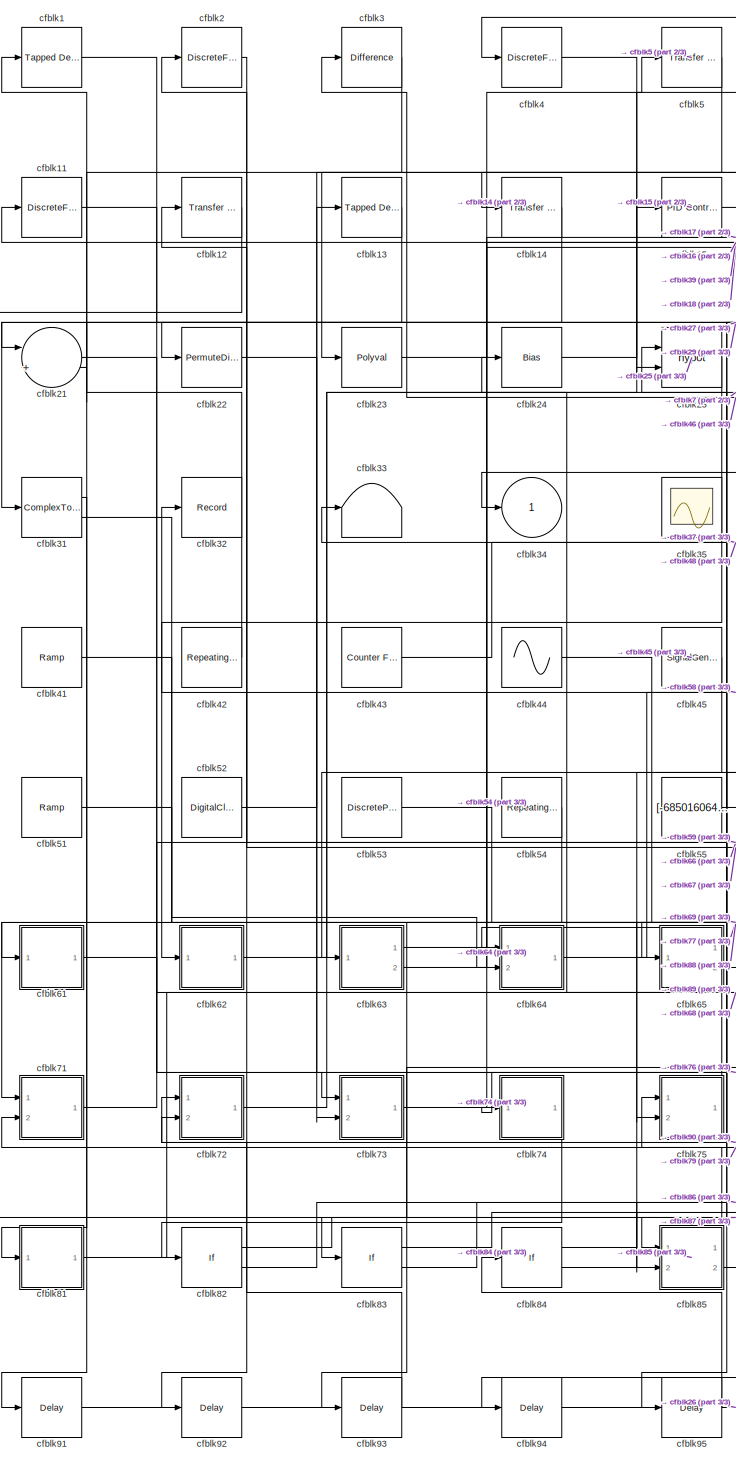
[diagram: root canvas - part 1/3, left side, full height]
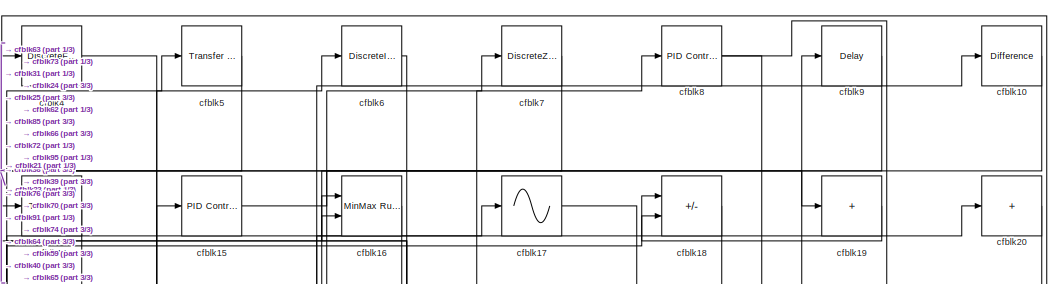
[diagram: root canvas - part 2/3, top center region]
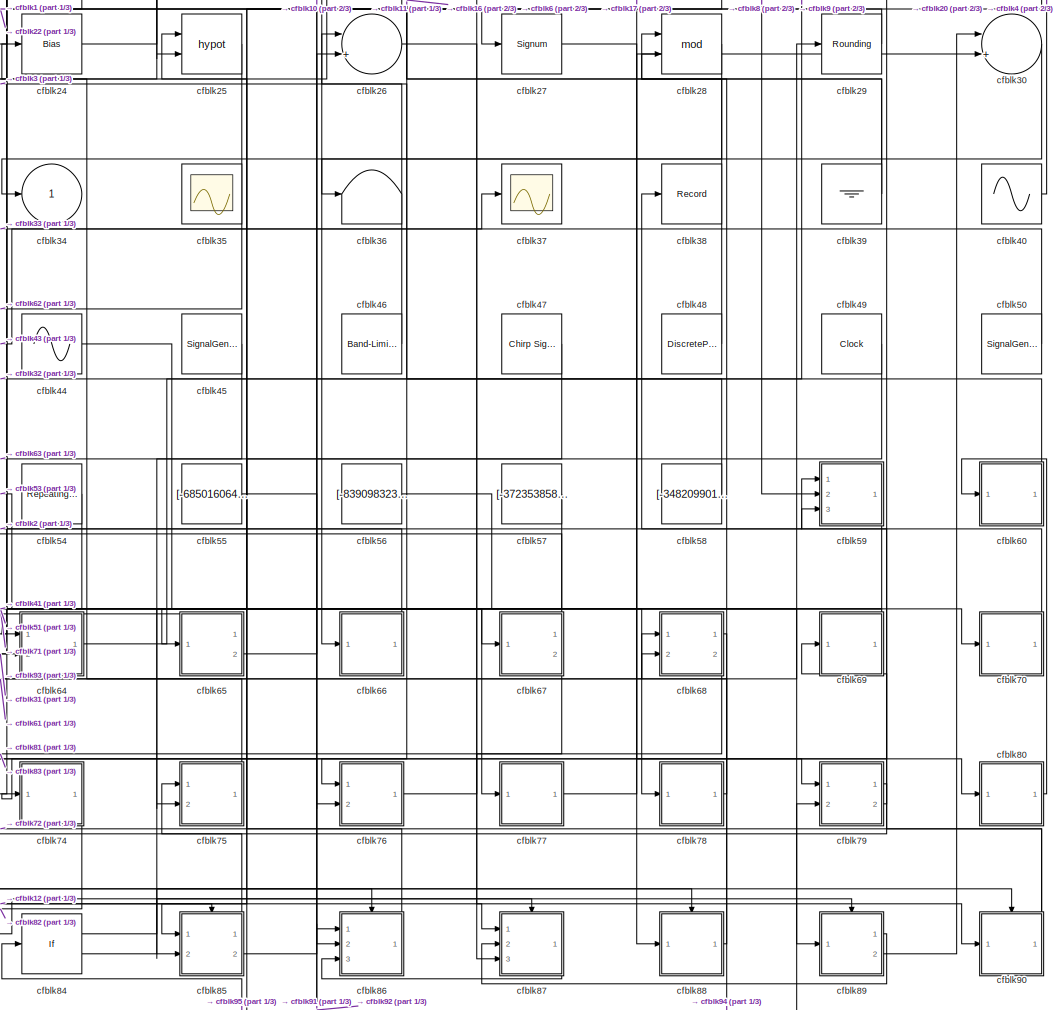
[diagram: root canvas - part 3/3, central region]
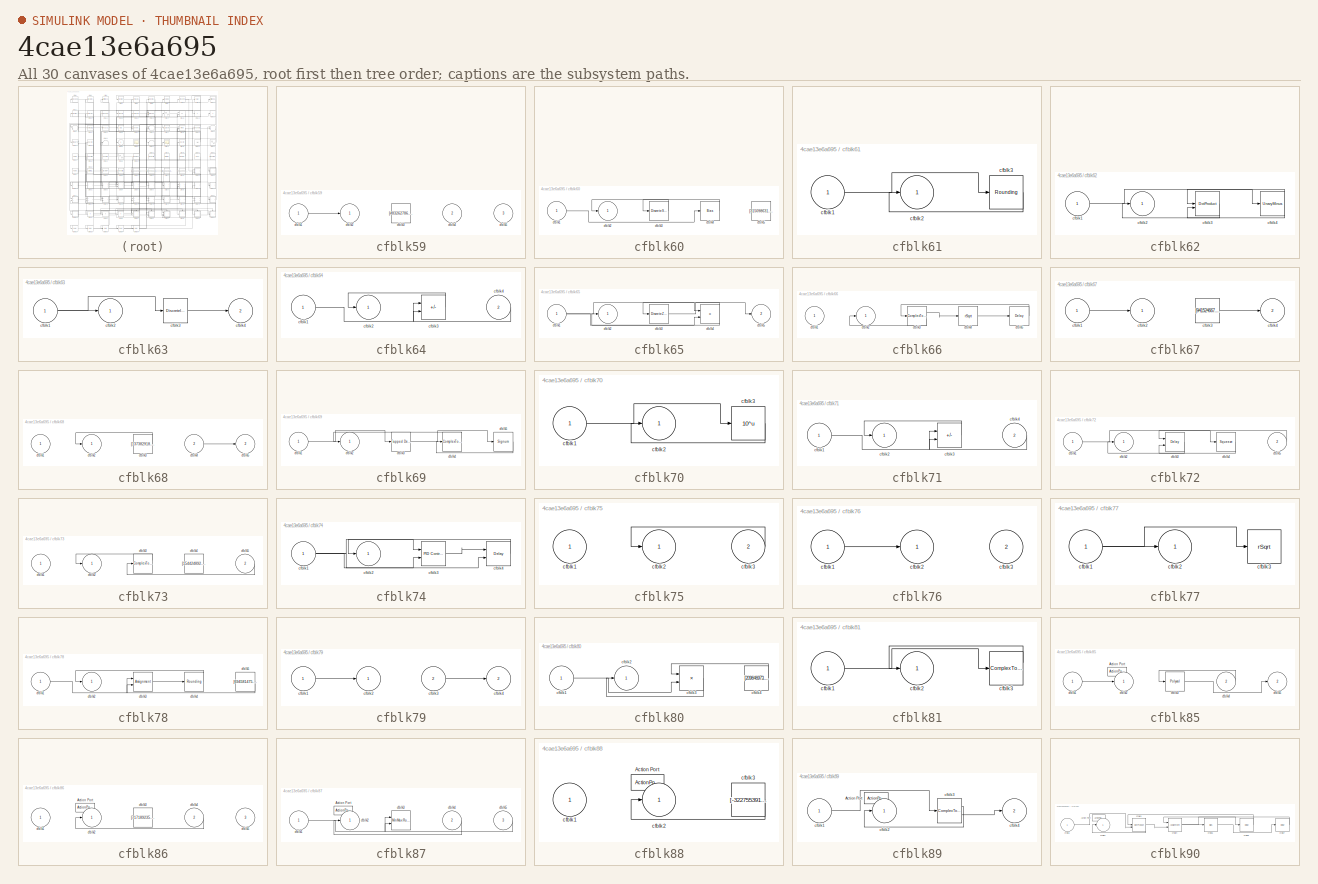
[diagram: thumbnail index - all 30 canvases of the model, root first then tree order]
MODEL slx_4cae13e6a695
KIND model
CONFIG AbsTol = auto
CONFIG EnableMultiTasking = off
CONFIG FixedStep = auto
CONFIG MaxStep = auto
CONFIG MinStep = auto
CONFIG RelTol = 1e-3
CONFIG SampleTimeConstraint = Unconstrained
CONFIG SolverName = VariableStepAuto
CONFIG StartTime = 0.0
CONFIG StopTime = 10.0
BLOCK [Reference] cfblk1  REF=simulink/Discrete/Tapped Delay
  Ports = [1, 1]
  SourceBlock = simulink/Discrete/Tapped Delay
  SourceProductBaseCode = SL
  SourceType = Tapped Delay Line
BLOCK [Reference] cfblk10  REF=simulink/Discrete/Difference
  Ports = [1, 1]
  SourceBlock = simulink/Discrete/Difference
  SourceProductBaseCode = SL
  SourceType = Difference
BLOCK [DiscreteFilter] cfblk11
  InputPortMap = u0
  Ports = [1, 1]
  SampleTime = 1
BLOCK [Reference] cfblk12  REF=simulink/Discrete/Transfer Fcn
Real Zero
  Ports = [1, 1]
  SourceBlock = simulink/Discrete/Transfer Fcn\nReal Zero
  SourceProductBaseCode = SL
  SourceType = Transfer Fcn Real Zero
BLOCK [Reference] cfblk13  REF=simulink/Discrete/Tapped Delay
  Ports = [1, 1]
  SourceBlock = simulink/Discrete/Tapped Delay
  SourceProductBaseCode = SL
  SourceType = Tapped Delay Line
BLOCK [Reference] cfblk14  REF=simulink/Discrete/Transfer Fcn
Real Zero
  Ports = [1, 1]
  SourceBlock = simulink/Discrete/Transfer Fcn\nReal Zero
  SourceProductBaseCode = SL
  SourceType = Transfer Fcn Real Zero
BLOCK [Reference] cfblk15  REF=slpidlib/PID Controller
  Ports = [1, 1]
  SourceBlock = slpidlib/PID Controller
  SourceProductBaseCode = SL
  SourceType = PID 1dof
BLOCK [Reference] cfblk16  REF=simulink/Math
Operations/MinMax
Running
Resettable
  Ports = [2, 1]
  SourceBlock = simulink/Math\nOperations/MinMax\nRunning\nResettable
  SourceProductBaseCode = SL
  SourceType = MinMax Running Resettable
BLOCK [Sin] cfblk17
  Ports = [1, 1]
  SampleTime = 0
  TimeSource = Use external signal
BLOCK [Sum] cfblk18
  IconShape = rectangular
  Inputs = +-
  Ports = [2, 1]
BLOCK [Sum] cfblk19
  IconShape = rectangular
  Inputs = +
  Ports = [1, 1]
BLOCK [DiscreteFilter] cfblk2
  InputPortMap = u0
  Ports = [1, 1]
  SampleTime = 1
BLOCK [Sum] cfblk20
  IconShape = rectangular
  Inputs = +
  Ports = [1, 1]
BLOCK [Sum] cfblk21
  Inputs = |++
  Ports = [2, 1]
BLOCK [PermuteDimensions] cfblk22
BLOCK [Polyval] cfblk23
  Coefs = [ +2.081618890e-019, -1.441693666e-014, +4.719686976e-010, -8.536869453e-006, +1.621573104e-001, -8.087801117e+001 ]
BLOCK [Bias] cfblk24
  Bias = [-380837975.252254]
  SaturateOnIntegerOverflow = off
BLOCK [Math] cfblk25
  Operator = hypot
  Ports = [2, 1]
BLOCK [Sum] cfblk26
  Inputs = |++
  Ports = [2, 1]
BLOCK [Signum] cfblk27
BLOCK [Math] cfblk28
  Operator = mod
  Ports = [2, 1]
BLOCK [Rounding] cfblk29
BLOCK [Reference] cfblk3  REF=simulink/Discrete/Difference
  Ports = [1, 1]
  SourceBlock = simulink/Discrete/Difference
  SourceProductBaseCode = SL
  SourceType = Difference
BLOCK [Sum] cfblk30
  Inputs = |++
  Ports = [2, 1]
BLOCK [ComplexToMagnitudeAngle] cfblk31
  Ports = [1, 2]
BLOCK [Record] cfblk32
  FileSettingsInternal = {"entries":[{"content":{"excelSettings":{"content":{},"type":"Streamout.ExcelSettings"}},"type":"Streamout.FileSettingStorage","uuid":"5b11a5a2-5e68-4f36-8408-98ce854f3ccd"}],"packageUris":["http://schema.mathworks.com/mf0/streamout_blocks/R2020a"],"version":"1.0"}
  Ports = [1]
  SignalsInternal = {"entries":[{"content":{"signals":[{"content":{"blockPath":["sampleModel236/cfblk32"],"channel":[],"dimensions":[1],"domain":"sampleModel236/cfblk32","lineColor":"#a2142f","plots":[1],"port":1,"sid":[""],"signalID":9312,"signalName":"cfblk58"},"type":"RecordBlkView.Signal","uuid":"27712abf-112c-4fe5-b550-73a12bfee51e"}]},"type":"RecordBlkView.InputSignals","uuid":"9fd94b8b-0a36-48a8-a3ac-959d75d04...<+97ch>
  VisualizationBindings = {"sparklinesplugin":{"info":[{"bindingParametersList":[],"subplotID":1}]}}
BLOCK [Terminator] cfblk33
BLOCK [Outport] cfblk34
BLOCK [Scope] cfblk35
  Floating = on
  NumInputPorts = 1
  Ports = []
BLOCK [Terminator] cfblk36
BLOCK [Scope] cfblk37
  Floating = off
  NumInputPorts = 1
  Ports = [1]
BLOCK [Record] cfblk38
  FileSettingsInternal = {"entries":[{"content":{"excelSettings":{"content":{},"type":"Streamout.ExcelSettings"}},"type":"Streamout.FileSettingStorage","uuid":"cb74a84e-db7e-4d7c-954c-5750777a433a"}],"packageUris":["http://schema.mathworks.com/mf0/streamout_blocks/R2020a"],"version":"1.0"}
  Ports = [1]
  SignalsInternal = {"entries":[{"content":{"signals":[{"content":{"blockPath":["sampleModel236/cfblk38"],"channel":[],"dimensions":[1],"domain":"sampleModel236/cfblk38","lineColor":"#4dbeee","plots":[1],"port":1,"sid":[""],"signalID":9308,"signalName":"cfblk70"},"type":"RecordBlkView.Signal","uuid":"318e5d47-999d-40c5-a48e-e77039ca7053"}]},"type":"RecordBlkView.InputSignals","uuid":"7dfd2dd8-a4b3-4c15-80f5-39bd455de...<+97ch>
  VisualizationBindings = {"sparklinesplugin":{"info":[{"bindingParametersList":[],"subplotID":1}]}}
BLOCK [Ground] cfblk39
BLOCK [DiscreteFilter] cfblk4
  InputPortMap = u0
  Ports = [1, 1]
  SampleTime = 1
BLOCK [Sin] cfblk40
  Amplitude = [207543279.558592]
  Bias = [985391916.605616]
  Ports = [0, 1]
  SampleTime = 0
BLOCK [Reference] cfblk41  REF=simulink/Sources/Ramp
  Ports = [0, 1]
  SourceBlock = simulink/Sources/Ramp
  SourceProductBaseCode = SL
  SourceType = Ramp
BLOCK [Reference] cfblk42  REF=simulink/Sources/Repeating
Sequence
Interpolated
  Ports = [0, 1]
  SourceBlock = simulink/Sources/Repeating\nSequence\nInterpolated
  SourceProductBaseCode = SL
  SourceType = Repeating Sequence Interpolated
BLOCK [Reference] cfblk43  REF=simulink/Sources/Counter
Free-Running
  Ports = [0, 1]
  SourceBlock = simulink/Sources/Counter\nFree-Running
  SourceProductBaseCode = SL
  SourceType = Counter Free-Running
BLOCK [Sin] cfblk44
  Amplitude = [-654409943.144665]
  Bias = [-168669685.952818]
  Ports = [0, 1]
  SampleTime = 0
BLOCK [SignalGenerator] cfblk45
  Amplitude = [-252692564.761920]
  Ports = [0, 1]
  WaveForm = square
BLOCK [Reference] cfblk46  REF=simulink/Sources/Band-Limited
White Noise
  Ports = [0, 1]
  SourceBlock = simulink/Sources/Band-Limited\nWhite Noise
  SourceProductBaseCode = SL
  SourceType = Band-Limited White Noise.
BLOCK [Reference] cfblk47  REF=simulink/Sources/Chirp Signal
  Ports = [0, 1]
  SourceBlock = simulink/Sources/Chirp Signal
  SourceProductBaseCode = SL
  SourceType = chirp
BLOCK [DiscretePulseGenerator] cfblk48
  Amplitude = [865458033.694204]
  Period = [94975358.163526]
  PhaseDelay = [8.000000]
  Ports = [0, 1]
  PulseType = Time based
  PulseWidth = 5
BLOCK [Clock] cfblk49
BLOCK [Reference] cfblk5  REF=simulink/Discrete/Transfer Fcn
Lead or Lag
  Ports = [1, 1]
  SourceBlock = simulink/Discrete/Transfer Fcn\nLead or Lag
  SourceProductBaseCode = SL
  SourceType = Lead or Lag Compensator
BLOCK [SignalGenerator] cfblk50
  Amplitude = [244471202.457805]
  Ports = [0, 1]
  Units = rad/sec
  WaveForm = square
BLOCK [Reference] cfblk51  REF=simulink/Sources/Ramp
  Ports = [0, 1]
  SourceBlock = simulink/Sources/Ramp
  SourceProductBaseCode = SL
  SourceType = Ramp
BLOCK [DigitalClock] cfblk52
BLOCK [DiscretePulseGenerator] cfblk53
  Amplitude = [536104014.623219]
  Period = [66164577.755354]
  PhaseDelay = [3.000000]
  Ports = [0, 1]
  PulseType = Time based
  PulseWidth = 5
BLOCK [Reference] cfblk54  REF=simulink/Sources/Repeating
Sequence
Stair
  Ports = [0, 1]
  SourceBlock = simulink/Sources/Repeating\nSequence\nStair
  SourceProductBaseCode = SL
  SourceType = Repeating Sequence Stair
BLOCK [Constant] cfblk55
  SampleTime = 1
  Value = [-685016064.285920]
BLOCK [Constant] cfblk56
  SampleTime = 1
  Value = [-839098323.258842]
BLOCK [Constant] cfblk57
  SampleTime = 1
  Value = [-372353858.279639]
BLOCK [Constant] cfblk58
  SampleTime = 1
  Value = [-348209901.464904]
BLOCK [SubSystem] cfblk59
  Ports = [3, 1]
  RequestExecContextInheritance = off
BLOCK [Inport] cfblk59/cfblk1
BLOCK [Outport] cfblk59/cfblk2
BLOCK [Constant] cfblk59/cfblk3
  SampleTime = 1
  Value = [483262786.552209]
BLOCK [Inport] cfblk59/cfblk4
  Port = 2
BLOCK [Inport] cfblk59/cfblk5
  Port = 3
BLOCK [DiscreteIntegrator] cfblk6
  ICPrevOutput = DiscIntNeverNeededParam
  ICPrevScaledInput = DiscIntNeverNeededParam
  InitialConditionSetting = Auto
  Ports = [1, 1]
BLOCK [SubSystem] cfblk60
  Ports = [1, 1]
  RequestExecContextInheritance = off
BLOCK [Inport] cfblk60/cfblk1
BLOCK [Outport] cfblk60/cfblk2
BLOCK [DiscreteStateSpace] cfblk60/cfblk3
BLOCK [Bias] cfblk60/cfblk4
  Bias = [-205345504.596702]
  SaturateOnIntegerOverflow = off
BLOCK [Constant] cfblk60/cfblk5
  SampleTime = 1
  Value = [315098631.748889]
BLOCK [SubSystem] cfblk61
  Ports = [1, 1]
  RequestExecContextInheritance = off
BLOCK [Inport] cfblk61/cfblk1
BLOCK [Outport] cfblk61/cfblk2
BLOCK [Rounding] cfblk61/cfblk3
BLOCK [SubSystem] cfblk62
  Ports = [1, 1]
  RequestExecContextInheritance = off
BLOCK [Inport] cfblk62/cfblk1
BLOCK [Outport] cfblk62/cfblk2
BLOCK [DotProduct] cfblk62/cfblk3
  OutDataTypeStr = Inherit: Inherit via internal rule
BLOCK [UnaryMinus] cfblk62/cfblk4
BLOCK [SubSystem] cfblk63
  Ports = [1, 2]
  RequestExecContextInheritance = off
BLOCK [Inport] cfblk63/cfblk1
BLOCK [Outport] cfblk63/cfblk2
BLOCK [DiscreteIntegrator] cfblk63/cfblk3
  ICPrevOutput = DiscIntNeverNeededParam
  ICPrevScaledInput = DiscIntNeverNeededParam
  InitialConditionSetting = Auto
  Ports = [1, 1]
BLOCK [Outport] cfblk63/cfblk4
  Port = 2
BLOCK [SubSystem] cfblk64
  Ports = [2, 1]
  RequestExecContextInheritance = off
BLOCK [Inport] cfblk64/cfblk1
BLOCK [Outport] cfblk64/cfblk2
BLOCK [Sum] cfblk64/cfblk3
  IconShape = rectangular
  Inputs = +-
  Ports = [2, 1]
BLOCK [Inport] cfblk64/cfblk4
  Port = 2
BLOCK [SubSystem] cfblk65
  Ports = [1, 2]
  RequestExecContextInheritance = off
BLOCK [Inport] cfblk65/cfblk1
BLOCK [Outport] cfblk65/cfblk2
BLOCK [DiscreteZeroPole] cfblk65/cfblk3
  Gain = 1
  Poles = [0 0.5]
BLOCK [Product] cfblk65/cfblk4
  Ports = [2, 1]
BLOCK [Outport] cfblk65/cfblk5
  Port = 2
BLOCK [SubSystem] cfblk66
  Ports = [1, 1]
  RequestExecContextInheritance = off
BLOCK [Inport] cfblk66/cfblk1
BLOCK [Outport] cfblk66/cfblk2
BLOCK [ComplexToRealImag] cfblk66/cfblk3
  Ports = [1, 2]
BLOCK [Sqrt] cfblk66/cfblk4
  AlgorithmType = Newton-Raphson
  Operator = rSqrt
BLOCK [Delay] cfblk66/cfblk5
  InputPortMap = u0
  Ports = [1, 1]
  SampleTime = 1
BLOCK [SubSystem] cfblk67
  Ports = [1, 2]
  RequestExecContextInheritance = off
BLOCK [Inport] cfblk67/cfblk1
BLOCK [Outport] cfblk67/cfblk2
BLOCK [Constant] cfblk67/cfblk3
  SampleTime = 1
  Value = [941524667.233957]
BLOCK [Outport] cfblk67/cfblk4
  Port = 2
BLOCK [SubSystem] cfblk68
  Ports = [2, 2]
  RequestExecContextInheritance = off
BLOCK [Inport] cfblk68/cfblk1
BLOCK [Outport] cfblk68/cfblk2
BLOCK [Constant] cfblk68/cfblk3
  SampleTime = 1
  Value = [137382918.716520]
BLOCK [Inport] cfblk68/cfblk4
  Port = 2
BLOCK [Outport] cfblk68/cfblk5
  Port = 2
BLOCK [SubSystem] cfblk69
  Ports = [1, 1]
  RequestExecContextInheritance = off
BLOCK [Inport] cfblk69/cfblk1
BLOCK [Outport] cfblk69/cfblk2
BLOCK [Reference] cfblk69/cfblk3  REF=simulink/Discrete/Tapped Delay
  Ports = [1, 1]
  SourceBlock = simulink/Discrete/Tapped Delay
  SourceProductBaseCode = SL
  SourceType = Tapped Delay Line
BLOCK [ComplexToMagnitudeAngle] cfblk69/cfblk4
  Ports = [1, 2]
BLOCK [Signum] cfblk69/cfblk5
BLOCK [DiscreteZeroPole] cfblk7
  Gain = 1
  Poles = [0 0.5]
BLOCK [SubSystem] cfblk70
  Ports = [1, 1]
  RequestExecContextInheritance = off
BLOCK [Inport] cfblk70/cfblk1
BLOCK [Outport] cfblk70/cfblk2
BLOCK [Math] cfblk70/cfblk3
  Operator = 10^u
  Ports = [1, 1]
BLOCK [SubSystem] cfblk71
  Ports = [2, 1]
  RequestExecContextInheritance = off
BLOCK [Inport] cfblk71/cfblk1
BLOCK [Outport] cfblk71/cfblk2
BLOCK [Sum] cfblk71/cfblk3
  IconShape = rectangular
  Inputs = +-
  Ports = [2, 1]
BLOCK [Inport] cfblk71/cfblk4
  Port = 2
BLOCK [SubSystem] cfblk72
  Ports = [2, 1]
  RequestExecContextInheritance = off
BLOCK [Inport] cfblk72/cfblk1
BLOCK [Outport] cfblk72/cfblk2
BLOCK [Delay] cfblk72/cfblk3
  DelayLengthSource = Input port
  InputPortMap = u0,p1
  Ports = [2, 1]
  SampleTime = 1
BLOCK [Squeeze] cfblk72/cfblk4
BLOCK [Inport] cfblk72/cfblk5
  Port = 2
BLOCK [SubSystem] cfblk73
  Ports = [2, 1]
  RequestExecContextInheritance = off
BLOCK [Inport] cfblk73/cfblk1
BLOCK [Outport] cfblk73/cfblk2
BLOCK [ComplexToMagnitudeAngle] cfblk73/cfblk3
  Ports = [1, 2]
BLOCK [Constant] cfblk73/cfblk4
  SampleTime = 1
  Value = [154424892.290205]
BLOCK [Inport] cfblk73/cfblk5
  Port = 2
BLOCK [SubSystem] cfblk74
  Ports = [1, 1]
  RequestExecContextInheritance = off
BLOCK [Inport] cfblk74/cfblk1
BLOCK [Outport] cfblk74/cfblk2
BLOCK [Reference] cfblk74/cfblk3  REF=slpidlib/PID Controller (2DOF)
  Ports = [2, 1]
  SourceBlock = slpidlib/PID Controller (2DOF)
  SourceProductBaseCode = SL
  SourceType = PID 2dof
BLOCK [Delay] cfblk74/cfblk4
  DelayLengthSource = Input port
  InputPortMap = u0,p1
  Ports = [2, 1]
  SampleTime = 1
BLOCK [SubSystem] cfblk75
  Ports = [2, 1]
  RequestExecContextInheritance = off
BLOCK [Inport] cfblk75/cfblk1
BLOCK [Outport] cfblk75/cfblk2
BLOCK [Inport] cfblk75/cfblk3
  Port = 2
BLOCK [SubSystem] cfblk76
  Ports = [2, 1]
  RequestExecContextInheritance = off
BLOCK [Inport] cfblk76/cfblk1
BLOCK [Outport] cfblk76/cfblk2
BLOCK [Inport] cfblk76/cfblk3
  Port = 2
BLOCK [SubSystem] cfblk77
  Ports = [1, 1]
  RequestExecContextInheritance = off
BLOCK [Inport] cfblk77/cfblk1
BLOCK [Outport] cfblk77/cfblk2
BLOCK [Sqrt] cfblk77/cfblk3
  AlgorithmType = Newton-Raphson
  Operator = rSqrt
BLOCK [SubSystem] cfblk78
  Ports = [1, 1]
  RequestExecContextInheritance = off
BLOCK [Inport] cfblk78/cfblk1
BLOCK [Outport] cfblk78/cfblk2
BLOCK [Assignment] cfblk78/cfblk3
  DiagnosticForDimensions = Warning
  IndexOptions = Index vector (dialog)
  Indices = 1
  OutputSizes = 1
  Ports = [2, 1]
BLOCK [Rounding] cfblk78/cfblk4
BLOCK [Constant] cfblk78/cfblk5
  SampleTime = 1
  Value = [694581475.399417]
BLOCK [SubSystem] cfblk79
  Ports = [2, 2]
  RequestExecContextInheritance = off
BLOCK [Inport] cfblk79/cfblk1
BLOCK [Outport] cfblk79/cfblk2
BLOCK [Inport] cfblk79/cfblk3
  Port = 2
BLOCK [Outport] cfblk79/cfblk4
  Port = 2
BLOCK [Reference] cfblk8  REF=slpidlib/PID Controller
  Ports = [1, 1]
  SourceBlock = slpidlib/PID Controller
  SourceProductBaseCode = SL
  SourceType = PID 1dof
BLOCK [SubSystem] cfblk80
  Ports = [1, 1]
  RequestExecContextInheritance = off
BLOCK [Inport] cfblk80/cfblk1
BLOCK [Outport] cfblk80/cfblk2
BLOCK [Product] cfblk80/cfblk3
  Inputs = **
  Ports = [2, 1]
BLOCK [Constant] cfblk80/cfblk4
  SampleTime = 1
  Value = [209646973.993399]
BLOCK [SubSystem] cfblk81
  Ports = [1, 1]
  RequestExecContextInheritance = off
BLOCK [Inport] cfblk81/cfblk1
BLOCK [Outport] cfblk81/cfblk2
BLOCK [ComplexToRealImag] cfblk81/cfblk3
  Ports = [1, 2]
BLOCK [If] cfblk82
  IfExpression = u1 >= 0
  Ports = [1, 2]
  SampleTime = 1
BLOCK [If] cfblk83
  IfExpression = u1 >= 0
  Ports = [1, 2]
  SampleTime = 1
BLOCK [If] cfblk84
  IfExpression = u1 >= 0
  Ports = [1, 2]
  SampleTime = 1
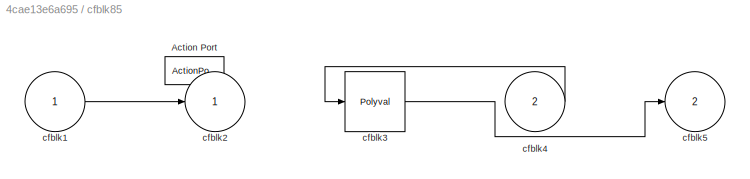
BLOCK [SubSystem] cfblk85
  Ports = [2, 2, 0, 0, 0, 0, 0, 1]
  RequestExecContextInheritance = off
  TreatAsAtomicUnit = on
BLOCK [ActionPort] cfblk85/Action Port
  ActionPortLabel = if(u1 >= 0)
BLOCK [Inport] cfblk85/cfblk1
BLOCK [Outport] cfblk85/cfblk2
BLOCK [Polyval] cfblk85/cfblk3
  Coefs = [ +2.081618890e-019, -1.441693666e-014, +4.719686976e-010, -8.536869453e-006, +1.621573104e-001, -8.087801117e+001 ]
BLOCK [Inport] cfblk85/cfblk4
  Port = 2
BLOCK [Outport] cfblk85/cfblk5
  Port = 2
BLOCK [SubSystem] cfblk86
  Ports = [3, 1, 0, 0, 0, 0, 0, 1]
  RequestExecContextInheritance = off
  TreatAsAtomicUnit = on
BLOCK [ActionPort] cfblk86/Action Port
  ActionPortLabel = else
BLOCK [Inport] cfblk86/cfblk1
BLOCK [Outport] cfblk86/cfblk2
BLOCK [Constant] cfblk86/cfblk3
  SampleTime = 1
  Value = [717189235.656510]
BLOCK [Inport] cfblk86/cfblk4
  Port = 2
BLOCK [Inport] cfblk86/cfblk5
  Port = 3
BLOCK [SubSystem] cfblk87
  Ports = [3, 1, 0, 0, 0, 0, 0, 1]
  RequestExecContextInheritance = off
  TreatAsAtomicUnit = on
BLOCK [ActionPort] cfblk87/Action Port
  ActionPortLabel = if(u1 >= 0)
BLOCK [Inport] cfblk87/cfblk1
BLOCK [Outport] cfblk87/cfblk2
BLOCK [Reference] cfblk87/cfblk3  REF=simulink/Math
Operations/MinMax
Running
Resettable
  Ports = [2, 1]
  SourceBlock = simulink/Math\nOperations/MinMax\nRunning\nResettable
  SourceProductBaseCode = SL
  SourceType = MinMax Running Resettable
BLOCK [Inport] cfblk87/cfblk4
  Port = 2
BLOCK [Inport] cfblk87/cfblk5
  Port = 3
BLOCK [SubSystem] cfblk88
  Ports = [1, 1, 0, 0, 0, 0, 0, 1]
  RequestExecContextInheritance = off
  TreatAsAtomicUnit = on
BLOCK [ActionPort] cfblk88/Action Port
  ActionPortLabel = else
BLOCK [Inport] cfblk88/cfblk1
BLOCK [Outport] cfblk88/cfblk2
BLOCK [Constant] cfblk88/cfblk3
  SampleTime = 1
  Value = [-322755391.366536]
BLOCK [SubSystem] cfblk89
  Ports = [1, 2, 0, 0, 0, 0, 0, 1]
  RequestExecContextInheritance = off
  TreatAsAtomicUnit = on
BLOCK [ActionPort] cfblk89/Action Port
  ActionPortLabel = if(u1 >= 0)
BLOCK [Inport] cfblk89/cfblk1
BLOCK [Outport] cfblk89/cfblk2
BLOCK [ComplexToRealImag] cfblk89/cfblk3
  Ports = [1, 2]
BLOCK [Outport] cfblk89/cfblk4
  Port = 2
BLOCK [Delay] cfblk9
  InputPortMap = u0
  Ports = [1, 1]
  SampleTime = 1
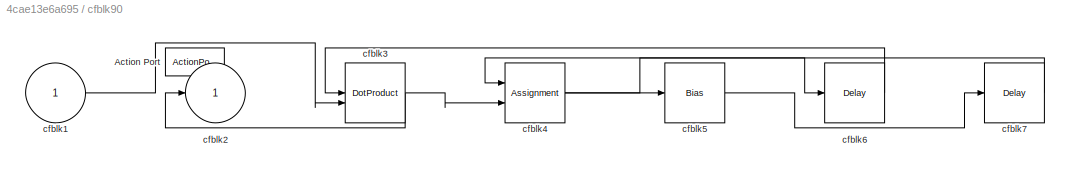
BLOCK [SubSystem] cfblk90
  Ports = [1, 1, 0, 0, 0, 0, 0, 1]
  RequestExecContextInheritance = off
  TreatAsAtomicUnit = on
BLOCK [ActionPort] cfblk90/Action Port
  ActionPortLabel = else
BLOCK [Inport] cfblk90/cfblk1
BLOCK [Outport] cfblk90/cfblk2
BLOCK [DotProduct] cfblk90/cfblk3
  OutDataTypeStr = Inherit: Inherit via internal rule
BLOCK [Assignment] cfblk90/cfblk4
  DiagnosticForDimensions = Warning
  IndexOptions = Index vector (dialog)
  Indices = 1
  OutputSizes = 1
  Ports = [2, 1]
BLOCK [Bias] cfblk90/cfblk5
  Bias = [-929863216.763175]
  SaturateOnIntegerOverflow = off
BLOCK [Delay] cfblk90/cfblk6
  InputPortMap = u0
  Ports = [1, 1]
BLOCK [Delay] cfblk90/cfblk7
  InputPortMap = u0
  Ports = [1, 1]
BLOCK [Delay] cfblk91
  InputPortMap = u0
  Ports = [1, 1]
  SampleTime = 1
BLOCK [Delay] cfblk92
  InputPortMap = u0
  Ports = [1, 1]
  SampleTime = 1
BLOCK [Delay] cfblk93
  InputPortMap = u0
  Ports = [1, 1]
  SampleTime = 1
BLOCK [Delay] cfblk94
  InputPortMap = u0
  Ports = [1, 1]
  SampleTime = 1
BLOCK [Delay] cfblk95
  InputPortMap = u0
  Ports = [1, 1]
  SampleTime = 1
LINE cfblk10:1 -> cfblk14:1
LINE cfblk11:1 -> cfblk76:2
LINE cfblk12:1 -> cfblk87:1
LINE cfblk13:1 -> cfblk21:1
LINE cfblk14:1 -> cfblk31:1
LINE cfblk15:1 -> cfblk19:1
LINE cfblk16:1 -> cfblk95:1
LINE cfblk17:1 -> cfblk70:1
LINE cfblk18:1 -> cfblk91:1
LINE cfblk19:1 -> cfblk18:2
LINE cfblk1:1 -> cfblk27:1
LINE cfblk20:1 -> cfblk65:1
LINE cfblk21:1 -> cfblk73:1
LINE cfblk22:1 -> cfblk79:1
LINE cfblk23:1 -> cfblk16:1
LINE cfblk24:1 -> cfblk6:1
LINE cfblk25:1 -> cfblk62:1
LINE cfblk26:1 -> cfblk90:1
LINE cfblk27:1 -> cfblk80:1
LINE cfblk28:1 -> cfblk34:1
LINE cfblk29:1 -> cfblk22:1
LINE cfblk2:1 -> cfblk92:1
LINE cfblk30:1 -> cfblk76:1
LINE cfblk31:1 -> cfblk81:1
LINE cfblk31:2 -> cfblk64:2
NET cfblk39:1 -> cfblk11:1, cfblk16:2
LINE cfblk3:1 -> cfblk73:2
LINE cfblk40:1 -> cfblk4:1
LINE cfblk41:1 -> cfblk88:1
LINE cfblk42:1 -> cfblk1:1
LINE cfblk43:1 -> cfblk37:1
LINE cfblk44:1 -> cfblk67:1
LINE cfblk45:1 -> cfblk63:1
LINE cfblk46:1 -> cfblk3:1
LINE cfblk47:1 -> cfblk75:2
LINE cfblk48:1 -> cfblk33:1
LINE cfblk49:1 -> cfblk85:1
LINE cfblk4:1 -> cfblk25:2
LINE cfblk50:1 -> cfblk28:1
LINE cfblk51:1 -> cfblk77:1
LINE cfblk52:1 -> cfblk13:1
LINE cfblk53:1 -> cfblk89:1
LINE cfblk54:1 -> cfblk71:1
LINE cfblk55:1 -> cfblk86:2
LINE cfblk56:1 -> cfblk78:1
LINE cfblk57:1 -> cfblk85:2
LINE cfblk58:1 -> cfblk32:1
LINE cfblk59/cfblk1:1 -> cfblk59/cfblk2:1
LINE cfblk59:1 -> cfblk93:1
LINE cfblk5:1 -> cfblk23:1
LINE cfblk60/cfblk1:1 -> cfblk60/cfblk4:1
LINE cfblk60/cfblk3:1 -> cfblk60/cfblk2:1
LINE cfblk60/cfblk4:1 -> cfblk60/cfblk3:1
LINE cfblk60:1 -> cfblk26:1
LINE cfblk61/cfblk1:1 -> cfblk61/cfblk3:1
LINE cfblk61/cfblk3:1 -> cfblk61/cfblk2:1
LINE cfblk61:1 -> cfblk68:2
LINE cfblk62/cfblk1:1 -> cfblk62/cfblk4:1
LINE cfblk62/cfblk3:1 -> cfblk62/cfblk2:1
NET cfblk62/cfblk4:1 -> cfblk62/cfblk3:1, cfblk62/cfblk3:2
LINE cfblk62:1 -> cfblk15:1
NET cfblk63/cfblk1:1 -> cfblk63/cfblk2:1, cfblk63/cfblk3:1
LINE cfblk63/cfblk3:1 -> cfblk63/cfblk4:1
LINE cfblk63:1 -> cfblk18:1
LINE cfblk63:2 -> cfblk17:1
LINE cfblk64/cfblk1:1 -> cfblk64/cfblk3:1
LINE cfblk64/cfblk3:1 -> cfblk64/cfblk2:1
LINE cfblk64/cfblk4:1 -> cfblk64/cfblk3:2
LINE cfblk64:1 -> cfblk9:1
NET cfblk65/cfblk1:1 -> cfblk65/cfblk4:1, cfblk65/cfblk4:2
LINE cfblk65/cfblk3:1 -> cfblk65/cfblk5:1
NET cfblk65/cfblk4:1 -> cfblk65/cfblk2:1, cfblk65/cfblk3:1
LINE cfblk65:1 -> cfblk64:1
LINE cfblk65:2 -> cfblk10:1
LINE cfblk66/cfblk3:1 -> cfblk66/cfblk4:1
LINE cfblk66/cfblk3:2 -> cfblk66/cfblk2:1
LINE cfblk66/cfblk4:1 -> cfblk66/cfblk5:1
LINE cfblk66/cfblk5:1 -> cfblk66/cfblk3:1
LINE cfblk66:1 -> cfblk2:1
LINE cfblk67/cfblk1:1 -> cfblk67/cfblk2:1
LINE cfblk67/cfblk3:1 -> cfblk67/cfblk4:1
LINE cfblk67:1 -> cfblk12:1
LINE cfblk67:2 -> cfblk83:1
LINE cfblk68/cfblk3:1 -> cfblk68/cfblk2:1
LINE cfblk68/cfblk4:1 -> cfblk68/cfblk5:1
LINE cfblk68:1 -> cfblk94:1
LINE cfblk68:2 -> cfblk87:3
LINE cfblk69/cfblk1:1 -> cfblk69/cfblk3:1
LINE cfblk69/cfblk3:1 -> cfblk69/cfblk5:1
LINE cfblk69/cfblk4:1 -> cfblk69/cfblk2:1
LINE cfblk69/cfblk5:1 -> cfblk69/cfblk4:1
LINE cfblk69:1 -> cfblk61:1
LINE cfblk6:1 -> cfblk36:1
LINE cfblk70/cfblk1:1 -> cfblk70/cfblk3:1
LINE cfblk70/cfblk3:1 -> cfblk70/cfblk2:1
LINE cfblk70:1 -> cfblk38:1
LINE cfblk71/cfblk1:1 -> cfblk71/cfblk3:2
LINE cfblk71/cfblk3:1 -> cfblk71/cfblk2:1
LINE cfblk71/cfblk4:1 -> cfblk71/cfblk3:1
LINE cfblk71:1 -> cfblk59:1
LINE cfblk72/cfblk1:1 -> cfblk72/cfblk4:1
LINE cfblk72/cfblk3:1 -> cfblk72/cfblk2:1
LINE cfblk72/cfblk4:1 -> cfblk72/cfblk3:2
LINE cfblk72/cfblk5:1 -> cfblk72/cfblk3:1
LINE cfblk72:1 -> cfblk7:1
LINE cfblk73/cfblk3:1 -> cfblk73/cfblk2:1
LINE cfblk73/cfblk5:1 -> cfblk73/cfblk3:1
LINE cfblk73:1 -> cfblk5:1
NET cfblk74/cfblk1:1 -> cfblk74/cfblk3:1, cfblk74/cfblk3:2, cfblk74/cfblk4:2
LINE cfblk74/cfblk3:1 -> cfblk74/cfblk4:1
LINE cfblk74/cfblk4:1 -> cfblk74/cfblk2:1
LINE cfblk74:1 -> cfblk82:1
LINE cfblk75/cfblk3:1 -> cfblk75/cfblk2:1
LINE cfblk75:1 -> cfblk24:1
LINE cfblk76/cfblk1:1 -> cfblk76/cfblk2:1
LINE cfblk76:1 -> cfblk8:1
NET cfblk77/cfblk1:1 -> cfblk77/cfblk2:1, cfblk77/cfblk3:1
LINE cfblk77:1 -> cfblk30:2
LINE cfblk78/cfblk1:1 -> cfblk78/cfblk3:1
LINE cfblk78/cfblk3:1 -> cfblk78/cfblk4:1
LINE cfblk78/cfblk4:1 -> cfblk78/cfblk2:1
LINE cfblk78/cfblk5:1 -> cfblk78/cfblk3:2
LINE cfblk78:1 -> cfblk28:2
LINE cfblk79/cfblk1:1 -> cfblk79/cfblk2:1
LINE cfblk79/cfblk3:1 -> cfblk79/cfblk4:1
LINE cfblk79:1 -> cfblk71:2
LINE cfblk79:2 -> cfblk69:1
LINE cfblk7:1 -> cfblk21:2
LINE cfblk80/cfblk1:1 -> cfblk80/cfblk3:2
LINE cfblk80/cfblk3:1 -> cfblk80/cfblk2:1
LINE cfblk80/cfblk4:1 -> cfblk80/cfblk3:1
LINE cfblk80:1 -> cfblk60:1
LINE cfblk81/cfblk1:1 -> cfblk81/cfblk3:1
LINE cfblk81/cfblk3:1 -> cfblk81/cfblk2:1
LINE cfblk81:1 -> cfblk29:1
LINE cfblk82:1 -> cfblk85:ifaction
LINE cfblk82:2 -> cfblk86:ifaction
LINE cfblk83:1 -> cfblk87:ifaction
LINE cfblk83:2 -> cfblk88:ifaction
LINE cfblk84:1 -> cfblk89:ifaction
LINE cfblk84:2 -> cfblk90:ifaction
LINE cfblk85/cfblk1:1 -> cfblk85/cfblk2:1
LINE cfblk85/cfblk3:1 -> cfblk85/cfblk5:1
LINE cfblk85/cfblk4:1 -> cfblk85/cfblk3:1
LINE cfblk85:1 -> cfblk75:1
LINE cfblk85:2 -> cfblk20:1
LINE cfblk86/cfblk4:1 -> cfblk86/cfblk2:1
LINE cfblk86:1 -> cfblk25:1
LINE cfblk87/cfblk1:1 -> cfblk87/cfblk3:1
LINE cfblk87/cfblk4:1 -> cfblk87/cfblk2:1
LINE cfblk87/cfblk5:1 -> cfblk87/cfblk3:2
LINE cfblk87:1 -> cfblk86:3
LINE cfblk88/cfblk3:1 -> cfblk88/cfblk2:1
LINE cfblk88:1 -> cfblk68:1
LINE cfblk89/cfblk1:1 -> cfblk89/cfblk3:1
LINE cfblk89/cfblk3:1 -> cfblk89/cfblk2:1
LINE cfblk89/cfblk3:2 -> cfblk89/cfblk4:1
LINE cfblk89:1 -> cfblk87:2
LINE cfblk89:2 -> cfblk30:1
NET cfblk8:1 -> cfblk59:2, cfblk74:1
LINE cfblk90/cfblk1:1 -> cfblk90/cfblk3:2
NET cfblk90/cfblk3:1 -> cfblk90/cfblk2:1, cfblk90/cfblk4:2
NET cfblk90/cfblk4:1 -> cfblk90/cfblk5:1, cfblk90/cfblk6:1
LINE cfblk90/cfblk5:1 -> cfblk90/cfblk7:1
LINE cfblk90/cfblk6:1 -> cfblk90/cfblk3:1
LINE cfblk90/cfblk7:1 -> cfblk90/cfblk4:1
NET cfblk90:1 -> cfblk59:3, cfblk72:1
LINE cfblk91:1 -> cfblk26:2
LINE cfblk92:1 -> cfblk86:1
LINE cfblk93:1 -> cfblk72:2
LINE cfblk94:1 -> cfblk79:2
LINE cfblk95:1 -> cfblk84:1
LINE cfblk9:1 -> cfblk66:1
note: NET lines group one-source signal fan-out (src -> all destinations, sorted); 1:1 wires keep LINE
